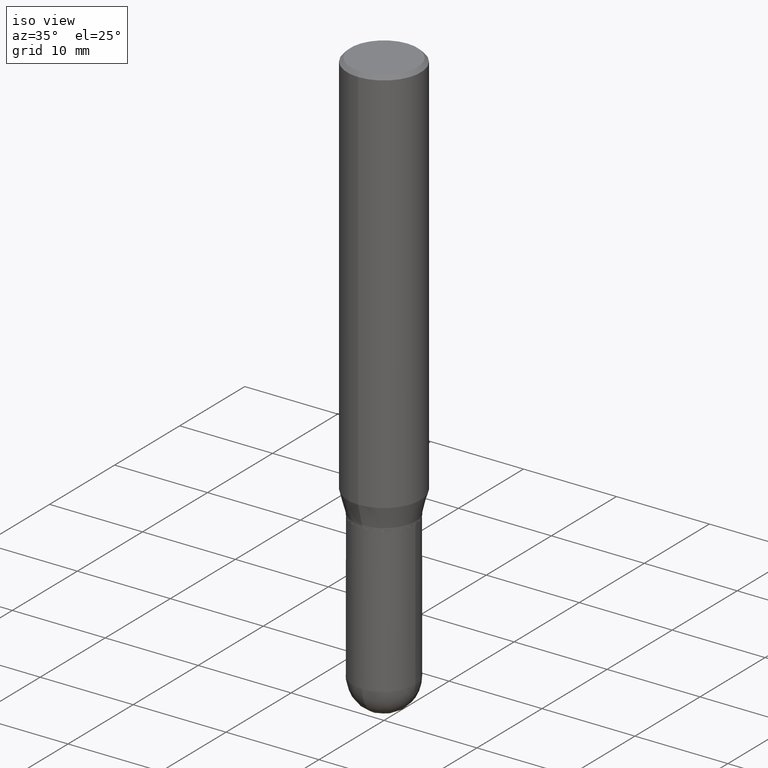
[diagram: clean part render]
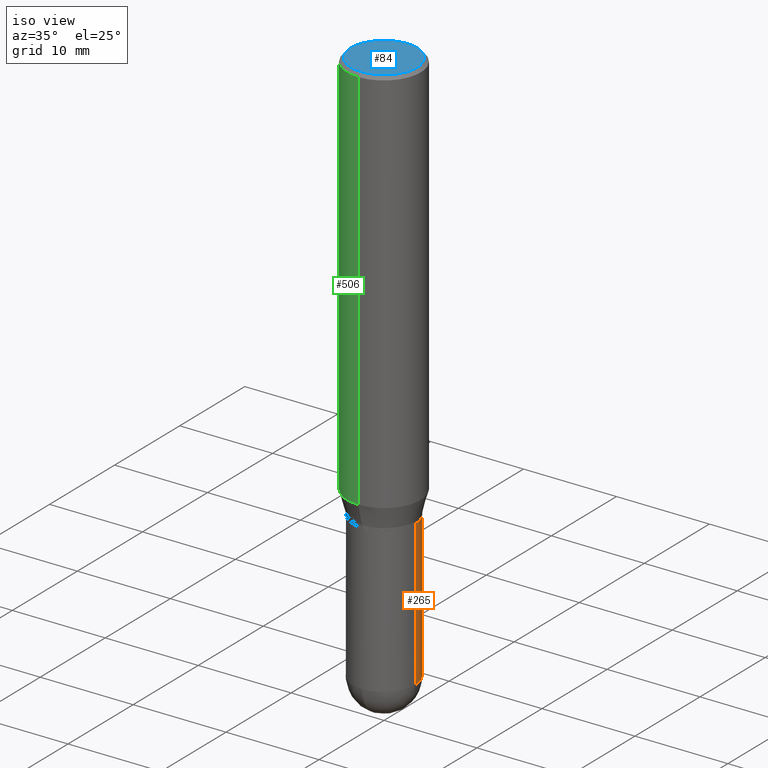
[diagram: same view with three faces highlighted in distinct colors, each labeled with its STEP entity id]
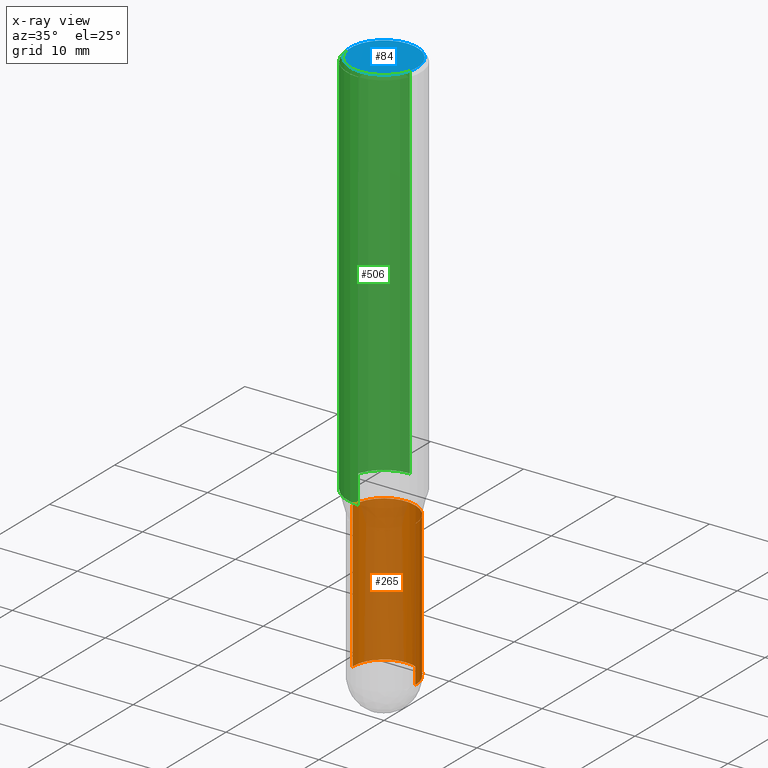
[diagram: x-ray of the same camera — body ghosted, the three highlighted faces saturated]
A machine part, iso view with three faces highlighted in distinct colors.
The next image is the same camera in x-ray (body ghosted, the three faces saturated) — at least one of them is partly hidden behind the body in this view.
Their STEP definitions:

[orange] entity #265 — the highlighted cylindrical surface (partial cylindrical patch) has radius 3.3731 mm, axis along (-0, 0, 1).
#7 = EDGE_CURVE ( 'NONE', #434, #440, #14, .T. ) ;
#14 = CIRCLE ( 'NONE', #307, 0.1328000000000000014 ) ;
#18 = CARTESIAN_POINT ( 'NONE',  ( 5.788913758001455526E-29, -8.265034625309493084E-15, -2.367199999999999971 ) ) ;
#25 = DIRECTION ( 'NONE',  ( -2.445468806185136877E-29, 3.491481338843145188E-15, 1.000000000000000000 ) ) ;
#60 = DIRECTION ( 'NONE',  ( -2.445468806185136877E-29, 3.491481338843145188E-15, 1.000000000000000000 ) ) ;
#62 = CARTESIAN_POINT ( 'NONE',  ( 9.273374435967940064E-16, 0.1327999999999917302, -2.367200000000000415 ) ) ;
#65 = CARTESIAN_POINT ( 'NONE',  ( -0.1328000000000000014, 9.436007530894130566E-16, -6.532345799858513932E-30 ) ) ;
#71 = DIRECTION ( 'NONE',  ( -2.445468806185136597E-29, 3.491481338843145583E-15, 1.000000000000000000 ) ) ;
#91 = DIRECTION ( 'NONE',  ( -2.445468806185136597E-29, 3.491481338843145583E-15, 1.000000000000000000 ) ) ;
#92 = CARTESIAN_POINT ( 'NONE',  ( -0.1328000000000000014, -6.243962731053086807E-15, -2.367199999999999971 ) ) ;
#94 = CYLINDRICAL_SURFACE ( 'NONE', #403, 0.1328000000000000014 ) ;
#99 = CARTESIAN_POINT ( 'NONE',  ( 0.1328000000000000014, -8.114900927739235889E-15, -2.367199999999999971 ) ) ;
#105 = DIRECTION ( 'NONE',  ( 1.000000000000000000, -6.982962677686263555E-15, 0.000000000000000000 ) ) ;
#106 = DIRECTION ( 'NONE',  ( 1.000000000000000000, -6.982962677686263555E-15, 0.000000000000000000 ) ) ;
#130 = ORIENTED_EDGE ( 'NONE', *, *, #7, .T. ) ;
#140 = EDGE_CURVE ( 'NONE', #165, #251, #288, .T. ) ;
#142 = CARTESIAN_POINT ( 'NONE',  ( 0.1328000000000000014, -7.037429786572241288E-15, -1.750000000000000222 ) ) ;
#144 = EDGE_CURVE ( 'NONE', #440, #251, #419, .T. ) ;
#152 = CARTESIAN_POINT ( 'NONE',  ( 5.788913758001455526E-29, -8.265034625309493084E-15, -2.367199999999999971 ) ) ;
#165 = VERTEX_POINT ( 'NONE', #142 ) ;
#172 = EDGE_CURVE ( 'NONE', #362, #165, #193, .T. ) ;
#185 = CARTESIAN_POINT ( 'NONE',  ( 4.279570410823989044E-29, -6.110092342975505460E-15, -1.750000000000000222 ) ) ;
#189 = DIRECTION ( 'NONE',  ( -2.445468806185136597E-29, 3.491481338843145583E-15, 1.000000000000000000 ) ) ;
#193 = LINE ( 'NONE', #383, #289 ) ;
#202 = AXIS2_PLACEMENT_3D ( 'NONE', #185, #189, #105 ) ;
#210 = ORIENTED_EDGE ( 'NONE', *, *, #144, .T. ) ;
#220 = CIRCLE ( 'NONE', #473, 0.1328000000000000014 ) ;
#241 = EDGE_LOOP ( 'NONE', ( #130, #210, #271, #401, #248 ) ) ;
#248 = ORIENTED_EDGE ( 'NONE', *, *, #429, .T. ) ;
#249 = CARTESIAN_POINT ( 'NONE',  ( 0.000000000000000000, 0.000000000000000000, 0.000000000000000000 ) ) ;
#251 = VERTEX_POINT ( 'NONE', #331 ) ;
#256 = DIRECTION ( 'NONE',  ( 1.000000000000000000, -6.982962677686266711E-15, 4.876176775795935232E-29 ) ) ;
#265 = ADVANCED_FACE ( 'NONE', ( #337 ), #94, .T. ) ;
#271 = ORIENTED_EDGE ( 'NONE', *, *, #140, .F. ) ;
#288 = CIRCLE ( 'NONE', #202, 0.1328000000000000014 ) ;
#289 = VECTOR ( 'NONE', #60, 39.37007874015748143 ) ;
#296 = DIRECTION ( 'NONE',  ( -2.445468806185136597E-29, 3.491481338843145583E-15, 1.000000000000000000 ) ) ;
#307 = AXIS2_PLACEMENT_3D ( 'NONE', #152, #71, #106 ) ;
#331 = CARTESIAN_POINT ( 'NONE',  ( -0.1328000000000000014, -6.243962731053086018E-15, -1.750000000000000222 ) ) ;
#337 = FACE_OUTER_BOUND ( 'NONE', #241, .T. ) ;
#362 = VERTEX_POINT ( 'NONE', #99 ) ;
#383 = CARTESIAN_POINT ( 'NONE',  ( 0.1328000000000000014, -9.273374435967362223E-16, 6.475562758257002307E-30 ) ) ;
#401 = ORIENTED_EDGE ( 'NONE', *, *, #172, .F. ) ;
#403 = AXIS2_PLACEMENT_3D ( 'NONE', #249, #91, #256 ) ;
#419 = LINE ( 'NONE', #65, #423 ) ;
#423 = VECTOR ( 'NONE', #25, 39.37007874015748143 ) ;
#429 = EDGE_CURVE ( 'NONE', #362, #434, #220, .T. ) ;
#434 = VERTEX_POINT ( 'NONE', #62 ) ;
#440 = VERTEX_POINT ( 'NONE', #92 ) ;
#473 = AXIS2_PLACEMENT_3D ( 'NONE', #18, #296, #497 ) ;
#497 = DIRECTION ( 'NONE',  ( 1.000000000000000000, -6.982962677686263555E-15, 0.000000000000000000 ) ) ;

[blue] entity #84 — the highlighted planar face has unit normal (0, -0, -1).
#6 = VERTEX_POINT ( 'NONE', #15 ) ;
#15 = CARTESIAN_POINT ( 'NONE',  ( 1.038715698305832292E-15, 0.1412499999999999867, -6.132962956503047871E-16 ) ) ;
#23 = CARTESIAN_POINT ( 'NONE',  ( 2.936853476447729499E-45, -4.193470271377658655E-31, -1.200997118054766005E-16 ) ) ;
#61 = CIRCLE ( 'NONE', #342, 0.1412499999999999867 ) ;
#84 = ADVANCED_FACE ( 'NONE', ( #349 ), #260, .F. ) ;
#110 = DIRECTION ( 'NONE',  ( 2.445345981516174448E-29, -3.491657230759844755E-15, -1.000000000000000000 ) ) ;
#146 = CARTESIAN_POINT ( 'NONE',  ( -1.020499077168515012E-15, -0.1412499999999999867, 3.730968720393515368E-16 ) ) ;
#179 = DIRECTION ( 'NONE',  ( -2.445345981516174728E-29, 3.491657230759845150E-15, 1.000000000000000000 ) ) ;
#181 = DIRECTION ( 'NONE',  ( -2.445345981516174728E-29, 3.491657230759845150E-15, 1.000000000000000000 ) ) ;
#214 = VERTEX_POINT ( 'NONE', #146 ) ;
#218 = CARTESIAN_POINT ( 'NONE',  ( 9.863434782231850151E-16, 0.1412499999999999867, -5.532464397475664005E-16 ) ) ;
#253 = AXIS2_PLACEMENT_3D ( 'NONE', #218, #110, #428 ) ;
#260 = PLANE ( 'NONE',  #253 ) ;
#297 = AXIS2_PLACEMENT_3D ( 'NONE', #418, #179, #372 ) ;
#328 = EDGE_LOOP ( 'NONE', ( #484, #510 ) ) ;
#342 = AXIS2_PLACEMENT_3D ( 'NONE', #23, #181, #493 ) ;
#349 = FACE_OUTER_BOUND ( 'NONE', #328, .T. ) ;
#372 = DIRECTION ( 'NONE',  ( -6.982962677686265922E-15, -1.000000000000000000, 3.491657230759845544E-15 ) ) ;
#391 = EDGE_CURVE ( 'NONE', #214, #6, #415, .T. ) ;
#415 = CIRCLE ( 'NONE', #297, 0.1412499999999999867 ) ;
#418 = CARTESIAN_POINT ( 'NONE',  ( 2.936853476447729499E-45, -4.193470271377658655E-31, -1.200997118054766005E-16 ) ) ;
#420 = EDGE_CURVE ( 'NONE', #6, #214, #61, .T. ) ;
#428 = DIRECTION ( 'NONE',  ( 6.982962677686265922E-15, 1.000000000000000000, -3.491657230759844755E-15 ) ) ;
#484 = ORIENTED_EDGE ( 'NONE', *, *, #420, .T. ) ;
#493 = DIRECTION ( 'NONE',  ( -6.982962677686265922E-15, -1.000000000000000000, 3.491657230759845544E-15 ) ) ;
#510 = ORIENTED_EDGE ( 'NONE', *, *, #391, .T. ) ;

[green] entity #506 — the highlighted cylindrical surface (partial cylindrical patch) has radius 3.9688 mm, axis along (-0, 0, 1).
#16 = DIRECTION ( 'NONE',  ( -6.982962677686265133E-15, -1.000000000000000000, 3.496765431890256920E-15 ) ) ;
#19 = ORIENTED_EDGE ( 'NONE', *, *, #259, .F. ) ;
#24 = EDGE_CURVE ( 'NONE', #410, #476, #422, .T. ) ;
#35 = DIRECTION ( 'NONE',  ( -2.445345981516174728E-29, 3.491657230759845150E-15, 1.000000000000000000 ) ) ;
#55 = CARTESIAN_POINT ( 'NONE',  ( -1.091087918388478779E-15, -0.1562500000000000833, -0.01499999999999957270 ) ) ;
#56 = EDGE_LOOP ( 'NONE', ( #195, #283, #512, #19 ) ) ;
#59 = VERTEX_POINT ( 'NONE', #507 ) ;
#108 = CARTESIAN_POINT ( 'NONE',  ( 0.000000000000000000, 0.000000000000000000, 0.000000000000000000 ) ) ;
#153 = CYLINDRICAL_SURFACE ( 'NONE', #395, 0.1562500000000000000 ) ;
#178 = DIRECTION ( 'NONE',  ( -2.445345981516174728E-29, 3.491657230759845150E-15, 1.000000000000000000 ) ) ;
#184 = DIRECTION ( 'NONE',  ( -6.982962677686265133E-15, -1.000000000000000000, 3.491657230759845150E-15 ) ) ;
#190 = VECTOR ( 'NONE', #469, 39.37007874015748143 ) ;
#195 = ORIENTED_EDGE ( 'NONE', *, *, #24, .F. ) ;
#208 = DIRECTION ( 'NONE',  ( -6.982962677686265133E-15, -1.000000000000000000, 3.496765431890256920E-15 ) ) ;
#242 = CARTESIAN_POINT ( 'NONE',  ( 1.110223024625197167E-15, 0.1562499999999942824, -1.652483408562510414 ) ) ;
#250 = CARTESIAN_POINT ( 'NONE',  ( 1.110223024625197364E-15, 0.1562499999999999445, -0.01500000000000066558 ) ) ;
#259 = EDGE_CURVE ( 'NONE', #476, #334, #272, .T. ) ;
#272 = CIRCLE ( 'NONE', #446, 0.1562500000000000000 ) ;
#283 = ORIENTED_EDGE ( 'NONE', *, *, #442, .T. ) ;
#284 = CARTESIAN_POINT ( 'NONE',  ( 3.668018972274291047E-31, -5.237485846139809263E-17, -0.01500000000000011914 ) ) ;
#304 = CARTESIAN_POINT ( 'NONE',  ( 1.110223024625156343E-15, 0.1562500000000000000, -5.455714423062258293E-16 ) ) ;
#315 = AXIS2_PLACEMENT_3D ( 'NONE', #332, #409, #208 ) ;
#332 = CARTESIAN_POINT ( 'NONE',  ( 4.040893662650484350E-29, -5.769905642217962811E-15, -1.652483408562509748 ) ) ;
#334 = VERTEX_POINT ( 'NONE', #55 ) ;
#353 = FACE_OUTER_BOUND ( 'NONE', #56, .T. ) ;
#371 = VECTOR ( 'NONE', #387, 39.37007874015748143 ) ;
#387 = DIRECTION ( 'NONE',  ( -2.445345981516174448E-29, 3.491657230759844755E-15, 1.000000000000000000 ) ) ;
#395 = AXIS2_PLACEMENT_3D ( 'NONE', #108, #35, #184 ) ;
#409 = DIRECTION ( 'NONE',  ( -2.445345981516174728E-29, 3.491657230759845150E-15, 1.000000000000000000 ) ) ;
#410 = VERTEX_POINT ( 'NONE', #242 ) ;
#422 = LINE ( 'NONE', #304, #371 ) ;
#427 = LINE ( 'NONE', #431, #190 ) ;
#431 = CARTESIAN_POINT ( 'NONE',  ( -1.091087918388478976E-15, -0.1562500000000000000, 5.455714423062258293E-16 ) ) ;
#442 = EDGE_CURVE ( 'NONE', #410, #59, #468, .T. ) ;
#446 = AXIS2_PLACEMENT_3D ( 'NONE', #284, #178, #16 ) ;
#468 = CIRCLE ( 'NONE', #315, 0.1562500000000000000 ) ;
#469 = DIRECTION ( 'NONE',  ( -2.445345981516174448E-29, 3.491657230759844755E-15, 1.000000000000000000 ) ) ;
#476 = VERTEX_POINT ( 'NONE', #250 ) ;
#482 = EDGE_CURVE ( 'NONE', #59, #334, #427, .T. ) ;
#506 = ADVANCED_FACE ( 'NONE', ( #353 ), #153, .T. ) ;
#507 = CARTESIAN_POINT ( 'NONE',  ( -1.091087918388438547E-15, -0.1562500000000057454, -1.652483408562509304 ) ) ;
#512 = ORIENTED_EDGE ( 'NONE', *, *, #482, .T. ) ;